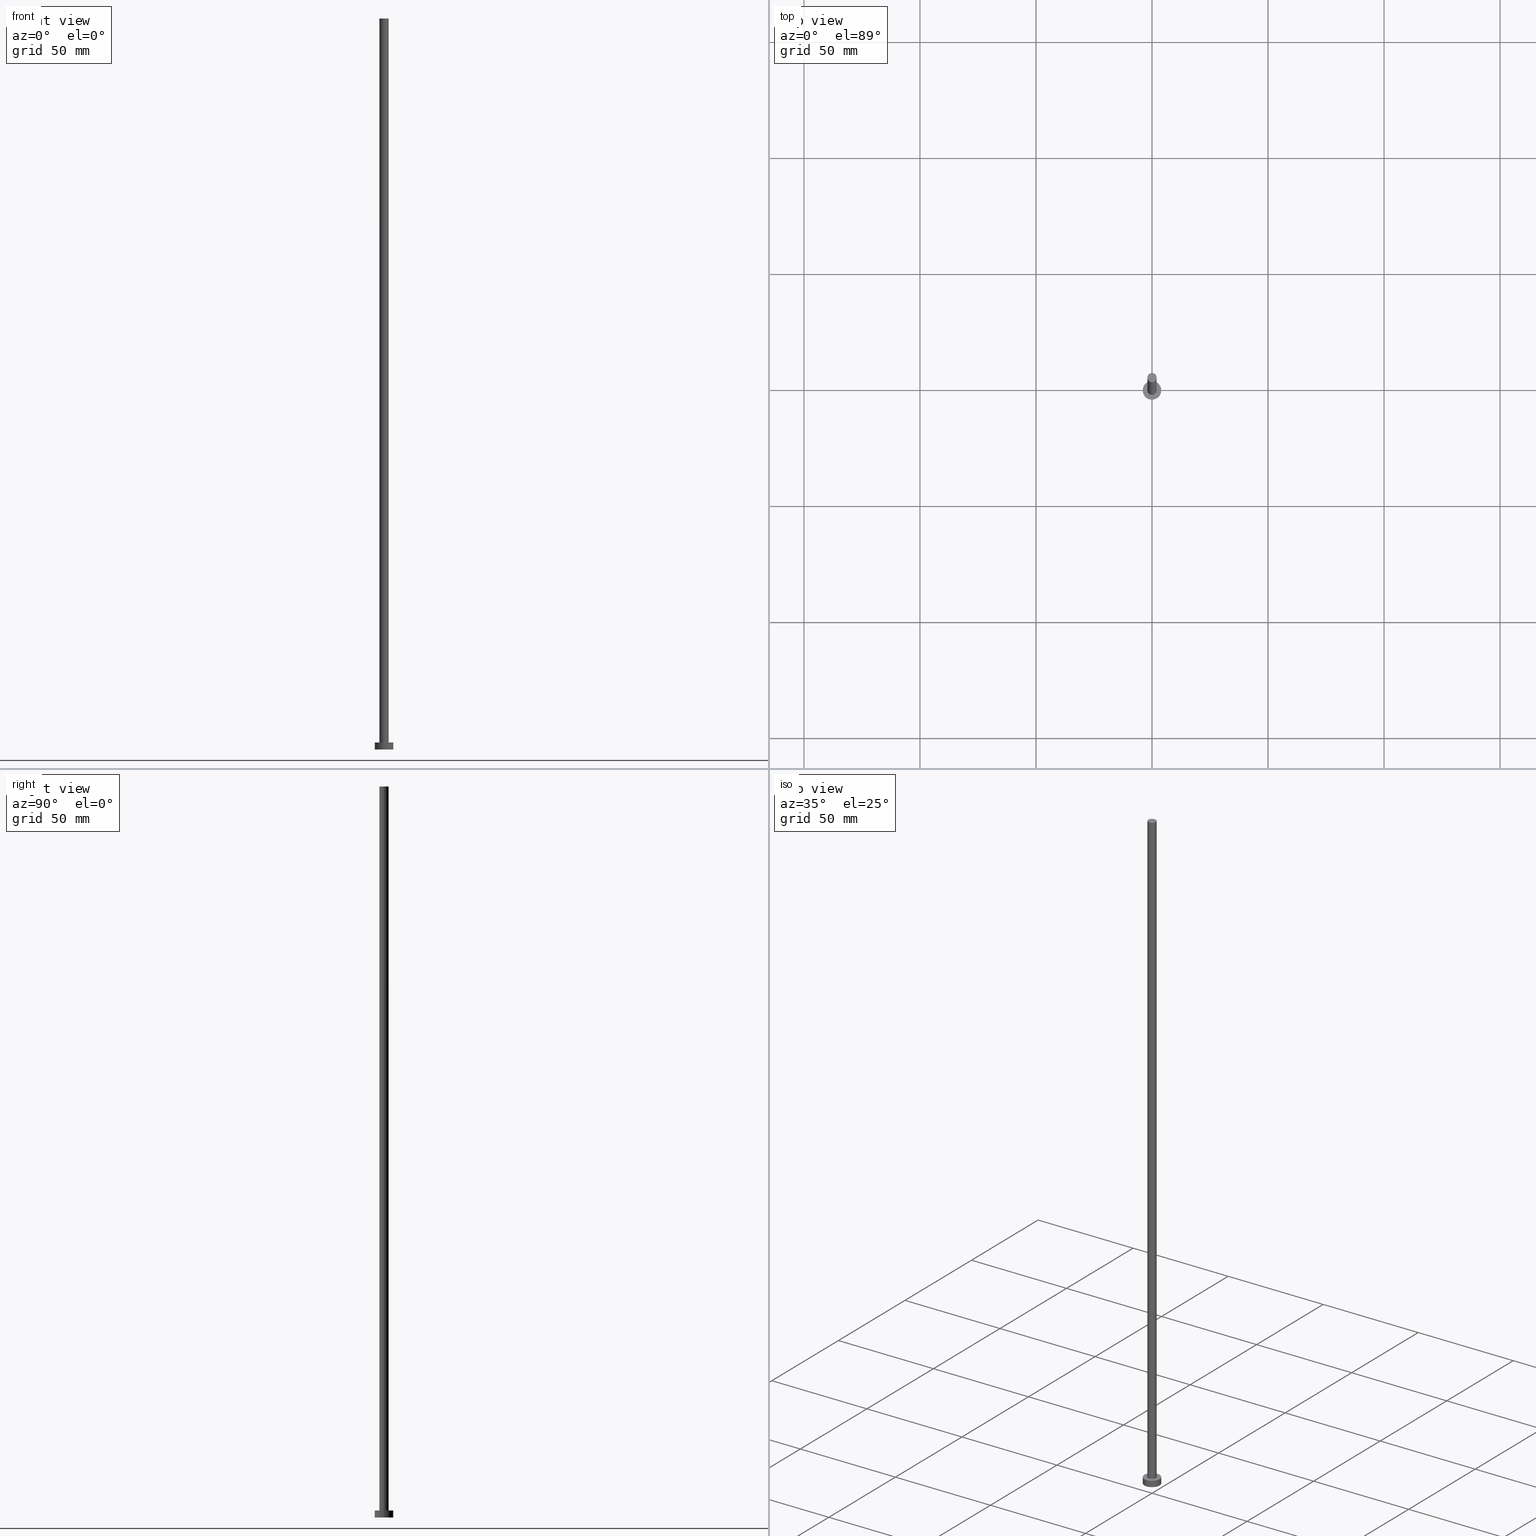
[diagram: canonical four-view strip — front | top / right | iso, engineering-drawing reading convention]
A machine part, canonical four-view strip (front | top / right | iso — engineering-drawing reading convention). The complete STEP part file that produces these views, byte-faithful:
ISO-10303-21;
HEADER;
FILE_DESCRIPTION (( 'STEP AP203' ),
    '1' );
FILE_NAME ('df63.STEP',
    '2023-02-13T13:57:13',
    ( '' ),
    ( '' ),
    'SwSTEP 2.0',
    'SolidWorks 2019',
    '' );
FILE_SCHEMA (( 'CONFIG_CONTROL_DESIGN' ));
ENDSEC;

DATA;
#1 = PERSON_AND_ORGANIZATION ( #118, #177 ) ;
#2 = EDGE_CURVE ( 'NONE', #64, #242, #34, .T. ) ;
#3 = CARTESIAN_POINT ( 'NONE',  ( 0.000000000000000000, 0.000000000000000000, 3.000000000000000000 ) ) ;
#4 = ORIENTED_EDGE ( 'NONE', *, *, #207, .F. ) ;
#5 = DIRECTION ( 'NONE',  ( -1.000000000000000000, 0.000000000000000000, 0.000000000000000000 ) ) ;
#6 = CIRCLE ( 'NONE', #68, 4.000000000000000000 ) ;
#7 = APPROVAL_STATUS ( 'not_yet_approved' ) ;
#8 = ADVANCED_FACE ( 'NONE', ( #245 ), #239, .T. ) ;
#9 = EDGE_LOOP ( 'NONE', ( #79, #77 ) ) ;
#10 = VERTEX_POINT ( 'NONE', #134 ) ;
#11 = DIRECTION ( 'NONE',  ( 0.000000000000000000, 0.000000000000000000, 1.000000000000000000 ) ) ;
#12 = CC_DESIGN_PERSON_AND_ORGANIZATION_ASSIGNMENT ( #41, #98, ( #29 ) ) ;
#13 = UNCERTAINTY_MEASURE_WITH_UNIT (LENGTH_MEASURE( 1.000000000000000082E-05 ), #36, 'distance_accuracy_value', 'NONE');
#14 = SHAPE_DEFINITION_REPRESENTATION ( #16, #42 ) ;
#15 = CIRCLE ( 'NONE', #170, 2.000000000000000000 ) ;
#16 = PRODUCT_DEFINITION_SHAPE ( 'NONE', 'NONE',  #187 ) ;
#17 = DIRECTION ( 'NONE',  ( 1.000000000000000000, 0.000000000000000000, 0.000000000000000000 ) ) ;
#18 = DATE_AND_TIME ( #237, #197 ) ;
#19 = APPROVAL_PERSON_ORGANIZATION ( #1, #236, #116 ) ;
#20 = PERSON_AND_ORGANIZATION ( #118, #177 ) ;
#21 = ORIENTED_EDGE ( 'NONE', *, *, #33, .F. ) ;
#22 = DIRECTION ( 'NONE',  ( -1.000000000000000000, 0.000000000000000000, 0.000000000000000000 ) ) ;
#23 = VERTEX_POINT ( 'NONE', #76 ) ;
#24 = DIRECTION ( 'NONE',  ( -0.000000000000000000, -0.000000000000000000, -1.000000000000000000 ) ) ;
#25 = ORIENTED_EDGE ( 'NONE', *, *, #127, .F. ) ;
#26 = ORIENTED_EDGE ( 'NONE', *, *, #91, .F. ) ;
#27 = APPROVAL ( #61, 'NEUR�EN�' ) ;
#28 = ORIENTED_EDGE ( 'NONE', *, *, #2, .F. ) ;
#29 = PRODUCT_DEFINITION_FORMATION_WITH_SPECIFIED_SOURCE ( 'LIBOVOLN�', '', #58, .NOT_KNOWN. ) ;
#30 = DIRECTION ( 'NONE',  ( 0.000000000000000000, 0.000000000000000000, 1.000000000000000000 ) ) ;
#31 = DESIGN_CONTEXT ( 'detailed design', #59, 'design' ) ;
#32 = PLANE ( 'NONE',  #196 ) ;
#33 = EDGE_CURVE ( 'NONE', #23, #48, #139, .T. ) ;
#34 = CIRCLE ( 'NONE', #193, 4.000000000000000000 ) ;
#35 = AXIS2_PLACEMENT_3D ( 'NONE', #233, #253, #17 ) ;
#36 =( LENGTH_UNIT ( ) NAMED_UNIT ( * ) SI_UNIT ( .MILLI., .METRE. ) );
#37 = DIRECTION ( 'NONE',  ( 0.000000000000000000, 0.000000000000000000, 1.000000000000000000 ) ) ;
#38 = APPROVAL_STATUS ( 'not_yet_approved' ) ;
#39 = AXIS2_PLACEMENT_3D ( 'NONE', #158, #182, #229 ) ;
#40 = VERTEX_POINT ( 'NONE', #102 ) ;
#41 = PERSON_AND_ORGANIZATION ( #118, #177 ) ;
#42 = ADVANCED_BREP_SHAPE_REPRESENTATION ( 'df63', ( #100, #146 ), #97 ) ;
#43 = PLANE ( 'NONE',  #67 ) ;
#44 = ORIENTED_EDGE ( 'NONE', *, *, #127, .T. ) ;
#45 = DIRECTION ( 'NONE',  ( 0.000000000000000000, 0.000000000000000000, 1.000000000000000000 ) ) ;
#46 = ORIENTED_EDGE ( 'NONE', *, *, #2, .T. ) ;
#47 = CC_DESIGN_PERSON_AND_ORGANIZATION_ASSIGNMENT ( #20, #132, ( #58 ) ) ;
#48 = VERTEX_POINT ( 'NONE', #121 ) ;
#49 = ADVANCED_FACE ( 'NONE', ( #222 ), #129, .T. ) ;
#50 = FACE_BOUND ( 'NONE', #220, .T. ) ;
#51 = PERSON_AND_ORGANIZATION_ROLE ( 'classification_officer' ) ;
#52 = CC_DESIGN_PERSON_AND_ORGANIZATION_ASSIGNMENT ( #120, #51, ( #160 ) ) ;
#53 = DIRECTION ( 'NONE',  ( -0.000000000000000000, -0.000000000000000000, -1.000000000000000000 ) ) ;
#54 = DIRECTION ( 'NONE',  ( 0.000000000000000000, 0.000000000000000000, 1.000000000000000000 ) ) ;
#55 = CARTESIAN_POINT ( 'NONE',  ( 0.000000000000000000, 0.000000000000000000, 3.000000000000000000 ) ) ;
#56 = DIRECTION ( 'NONE',  ( 1.000000000000000000, 0.000000000000000000, 0.000000000000000000 ) ) ;
#57 = APPLICATION_CONTEXT ( 'configuration controlled 3d designs of mechanical parts and assemblies' ) ;
#58 = PRODUCT ( 'df63', 'df63', '', ( #212 ) ) ;
#59 = APPLICATION_CONTEXT ( 'configuration controlled 3d designs of mechanical parts and assemblies' ) ;
#60 = DIRECTION ( 'NONE',  ( 0.000000000000000000, 0.000000000000000000, 1.000000000000000000 ) ) ;
#61 = APPROVAL_STATUS ( 'not_yet_approved' ) ;
#62 = DIRECTION ( 'NONE',  ( -0.000000000000000000, -0.000000000000000000, -1.000000000000000000 ) ) ;
#63 = EDGE_LOOP ( 'NONE', ( #135, #21, #117, #195 ) ) ;
#64 = VERTEX_POINT ( 'NONE', #241 ) ;
#65 = ADVANCED_FACE ( 'NONE', ( #219 ), #43, .F. ) ;
#66 = LINE ( 'NONE', #140, #180 ) ;
#67 = AXIS2_PLACEMENT_3D ( 'NONE', #194, #110, #137 ) ;
#68 = AXIS2_PLACEMENT_3D ( 'NONE', #251, #254, #73 ) ;
#69 = LOCAL_TIME ( 14, 57, 13.00000000000000000, #78 ) ;
#70 = FACE_OUTER_BOUND ( 'NONE', #9, .T. ) ;
#71 = ADVANCED_FACE ( 'NONE', ( #185 ), #201, .T. ) ;
#72 = CC_DESIGN_APPROVAL ( #27, ( #29 ) ) ;
#73 = DIRECTION ( 'NONE',  ( 1.000000000000000000, 0.000000000000000000, 0.000000000000000000 ) ) ;
#74 = AXIS2_PLACEMENT_3D ( 'NONE', #216, #24, #5 ) ;
#75 = PERSON_AND_ORGANIZATION ( #118, #177 ) ;
#76 = CARTESIAN_POINT ( 'NONE',  ( -2.000000000000000000, 0.000000000000000000, 315.0000000000000000 ) ) ;
#77 = ORIENTED_EDGE ( 'NONE', *, *, #114, .T. ) ;
#78 = COORDINATED_UNIVERSAL_TIME_OFFSET ( 1, 0, .AHEAD. ) ;
#79 = ORIENTED_EDGE ( 'NONE', *, *, #33, .T. ) ;
#80 = DIRECTION ( 'NONE',  ( 1.000000000000000000, 0.000000000000000000, 0.000000000000000000 ) ) ;
#81 = ORIENTED_EDGE ( 'NONE', *, *, #173, .F. ) ;
#82 = CC_DESIGN_DATE_AND_TIME_ASSIGNMENT ( #18, #96, ( #160 ) ) ;
#83 = AXIS2_PLACEMENT_3D ( 'NONE', #3, #62, #22 ) ;
#84 = VECTOR ( 'NONE', #142, 1000.000000000000000 ) ;
#85 = ORIENTED_EDGE ( 'NONE', *, *, #114, .F. ) ;
#86 = LOCAL_TIME ( 14, 57, 13.00000000000000000, #89 ) ;
#87 = APPROVAL_DATE_TIME ( #240, #202 ) ;
#88 = CARTESIAN_POINT ( 'NONE',  ( 4.000000000000000000, 4.898587196589412829E-16, 3.000000000000000000 ) ) ;
#89 = COORDINATED_UNIVERSAL_TIME_OFFSET ( 1, 0, .AHEAD. ) ;
#90 = DIRECTION ( 'NONE',  ( -1.000000000000000000, 0.000000000000000000, 0.000000000000000000 ) ) ;
#91 = EDGE_CURVE ( 'NONE', #10, #223, #224, .T. ) ;
#92 = EDGE_CURVE ( 'NONE', #23, #155, #136, .T. ) ;
#93 = DIRECTION ( 'NONE',  ( 0.000000000000000000, 0.000000000000000000, 1.000000000000000000 ) ) ;
#94 = CC_DESIGN_DATE_AND_TIME_ASSIGNMENT ( #221, #104, ( #187 ) ) ;
#95 = CARTESIAN_POINT ( 'NONE',  ( -4.000000000000000000, 0.000000000000000000, 3.000000000000000000 ) ) ;
#96 = DATE_TIME_ROLE ( 'classification_date' ) ;
#97 =( GEOMETRIC_REPRESENTATION_CONTEXT ( 3 ) GLOBAL_UNCERTAINTY_ASSIGNED_CONTEXT ( ( #13 ) ) GLOBAL_UNIT_ASSIGNED_CONTEXT ( ( #36, #156, #238 ) ) REPRESENTATION_CONTEXT ( 'NONE', 'WORKASPACE' ) );
#98 = PERSON_AND_ORGANIZATION_ROLE ( 'creator' ) ;
#99 = EDGE_LOOP ( 'NONE', ( #26, #4 ) ) ;
#100 = MANIFOLD_SOLID_BREP ( 'P�idat vysunut�m3', #226 ) ;
#101 = ADVANCED_FACE ( 'NONE', ( #50, #108 ), #32, .T. ) ;
#102 = CARTESIAN_POINT ( 'NONE',  ( 2.000000000000000000, 2.449293598294706414E-16, 3.000000000000000000 ) ) ;
#103 = ORIENTED_EDGE ( 'NONE', *, *, #247, .F. ) ;
#104 = DATE_TIME_ROLE ( 'creation_date' ) ;
#105 = CC_DESIGN_SECURITY_CLASSIFICATION ( #160, ( #29 ) ) ;
#106 = APPLICATION_PROTOCOL_DEFINITION ( 'international standard', 'config_control_design', 1994, #59 ) ;
#107 = ORIENTED_EDGE ( 'NONE', *, *, #173, .T. ) ;
#108 = FACE_OUTER_BOUND ( 'NONE', #175, .T. ) ;
#109 = DIRECTION ( 'NONE',  ( 1.000000000000000000, 0.000000000000000000, 0.000000000000000000 ) ) ;
#110 = DIRECTION ( 'NONE',  ( 0.000000000000000000, 0.000000000000000000, 1.000000000000000000 ) ) ;
#111 = CARTESIAN_POINT ( 'NONE',  ( 0.000000000000000000, 0.000000000000000000, 3.000000000000000000 ) ) ;
#112 = LOCAL_TIME ( 14, 57, 13.00000000000000000, #149 ) ;
#113 = DIRECTION ( 'NONE',  ( -0.000000000000000000, -0.000000000000000000, -1.000000000000000000 ) ) ;
#114 = EDGE_CURVE ( 'NONE', #48, #23, #15, .T. ) ;
#115 = AXIS2_PLACEMENT_3D ( 'NONE', #232, #93, #56 ) ;
#116 = APPROVAL_ROLE ( '' ) ;
#117 = ORIENTED_EDGE ( 'NONE', *, *, #92, .T. ) ;
#118 = PERSON ( 'NEUR�EN�', 'NEUR�EN�', 'NEUR�EN�', ('NEUR�EN�'), ('NEUR�EN�'), ('NEUR�EN�') ) ;
#119 = ORIENTED_EDGE ( 'NONE', *, *, #165, .T. ) ;
#120 = PERSON_AND_ORGANIZATION ( #118, #177 ) ;
#121 = CARTESIAN_POINT ( 'NONE',  ( 2.000000000000000000, 2.449293598294706414E-16, 315.0000000000000000 ) ) ;
#122 = ORIENTED_EDGE ( 'NONE', *, *, #91, .T. ) ;
#123 = APPROVAL_DATE_TIME ( #227, #27 ) ;
#124 = DIRECTION ( 'NONE',  ( 1.000000000000000000, 0.000000000000000000, -0.000000000000000000 ) ) ;
#125 = CARTESIAN_POINT ( 'NONE',  ( 0.000000000000000000, 0.000000000000000000, 3.000000000000000000 ) ) ;
#126 = PERSON_AND_ORGANIZATION_ROLE ( 'creator' ) ;
#127 = EDGE_CURVE ( 'NONE', #64, #223, #183, .T. ) ;
#128 = DIRECTION ( 'NONE',  ( 1.000000000000000000, 0.000000000000000000, 0.000000000000000000 ) ) ;
#129 = CYLINDRICAL_SURFACE ( 'NONE', #74, 4.000000000000000000 ) ;
#130 = EDGE_LOOP ( 'NONE', ( #25, #81, #217, #122 ) ) ;
#131 = CALENDAR_DATE ( 2023, 13, 2 ) ;
#132 = PERSON_AND_ORGANIZATION_ROLE ( 'design_owner' ) ;
#133 = VECTOR ( 'NONE', #53, 1000.000000000000000 ) ;
#134 = CARTESIAN_POINT ( 'NONE',  ( -4.000000000000000000, 0.000000000000000000, 0.000000000000000000 ) ) ;
#135 = ORIENTED_EDGE ( 'NONE', *, *, #165, .F. ) ;
#136 = LINE ( 'NONE', #205, #133 ) ;
#137 = DIRECTION ( 'NONE',  ( 1.000000000000000000, 0.000000000000000000, -0.000000000000000000 ) ) ;
#138 = CARTESIAN_POINT ( 'NONE',  ( 0.000000000000000000, 0.000000000000000000, 0.000000000000000000 ) ) ;
#139 = CIRCLE ( 'NONE', #204, 2.000000000000000000 ) ;
#140 = CARTESIAN_POINT ( 'NONE',  ( -4.000000000000000000, 0.000000000000000000, 3.000000000000000000 ) ) ;
#141 = CIRCLE ( 'NONE', #35, 2.000000000000000000 ) ;
#142 = DIRECTION ( 'NONE',  ( -0.000000000000000000, -0.000000000000000000, -1.000000000000000000 ) ) ;
#143 = CARTESIAN_POINT ( 'NONE',  ( 0.000000000000000000, 0.000000000000000000, 315.0000000000000000 ) ) ;
#144 = VECTOR ( 'NONE', #113, 1000.000000000000000 ) ;
#145 = CARTESIAN_POINT ( 'NONE',  ( 4.000000000000000000, 4.898587196589412829E-16, 0.000000000000000000 ) ) ;
#146 = AXIS2_PLACEMENT_3D ( 'NONE', #138, #45, #128 ) ;
#147 = CC_DESIGN_PERSON_AND_ORGANIZATION_ASSIGNMENT ( #172, #243, ( #29 ) ) ;
#148 = SECURITY_CLASSIFICATION_LEVEL ( 'unclassified' ) ;
#149 = COORDINATED_UNIVERSAL_TIME_OFFSET ( 1, 0, .AHEAD. ) ;
#150 = CARTESIAN_POINT ( 'NONE',  ( 0.000000000000000000, 0.000000000000000000, 315.0000000000000000 ) ) ;
#151 = ORIENTED_EDGE ( 'NONE', *, *, #231, .F. ) ;
#152 = AXIS2_PLACEMENT_3D ( 'NONE', #188, #206, #90 ) ;
#153 = CALENDAR_DATE ( 2023, 13, 2 ) ;
#154 = EDGE_LOOP ( 'NONE', ( #28, #44, #191, #211 ) ) ;
#155 = VERTEX_POINT ( 'NONE', #249 ) ;
#156 =( NAMED_UNIT ( * ) PLANE_ANGLE_UNIT ( ) SI_UNIT ( $, .RADIAN. ) );
#157 = DIRECTION ( 'NONE',  ( 0.000000000000000000, 0.000000000000000000, 1.000000000000000000 ) ) ;
#158 = CARTESIAN_POINT ( 'NONE',  ( 0.000000000000000000, 0.000000000000000000, 315.0000000000000000 ) ) ;
#159 = PRODUCT_RELATED_PRODUCT_CATEGORY ( 'detail', '', ( #58 ) ) ;
#160 = SECURITY_CLASSIFICATION ( '', '', #148 ) ;
#161 = CALENDAR_DATE ( 2023, 13, 2 ) ;
#162 = DIRECTION ( 'NONE',  ( 1.000000000000000000, 0.000000000000000000, -0.000000000000000000 ) ) ;
#163 = APPROVAL_DATE_TIME ( #184, #236 ) ;
#164 = LOCAL_TIME ( 14, 57, 13.00000000000000000, #178 ) ;
#165 = EDGE_CURVE ( 'NONE', #48, #40, #230, .T. ) ;
#166 = DIRECTION ( 'NONE',  ( 0.000000000000000000, 0.000000000000000000, 1.000000000000000000 ) ) ;
#167 = EDGE_CURVE ( 'NONE', #242, #10, #66, .T. ) ;
#168 = DIRECTION ( 'NONE',  ( 1.000000000000000000, 0.000000000000000000, 0.000000000000000000 ) ) ;
#169 = ADVANCED_FACE ( 'NONE', ( #234 ), #235, .T. ) ;
#170 = AXIS2_PLACEMENT_3D ( 'NONE', #250, #30, #109 ) ;
#171 = APPROVAL_ROLE ( '' ) ;
#172 = PERSON_AND_ORGANIZATION ( #118, #177 ) ;
#173 = EDGE_CURVE ( 'NONE', #242, #64, #228, .T. ) ;
#174 = APPROVAL_ROLE ( '' ) ;
#175 = EDGE_LOOP ( 'NONE', ( #107, #46 ) ) ;
#176 = CIRCLE ( 'NONE', #208, 2.000000000000000000 ) ;
#177 = ORGANIZATION ( 'NEUR�EN�', 'NEUR�EN�', '' ) ;
#178 = COORDINATED_UNIVERSAL_TIME_OFFSET ( 1, 0, .AHEAD. ) ;
#179 = ORIENTED_EDGE ( 'NONE', *, *, #92, .F. ) ;
#180 = VECTOR ( 'NONE', #210, 1000.000000000000000 ) ;
#181 = CC_DESIGN_APPROVAL ( #236, ( #160 ) ) ;
#182 = DIRECTION ( 'NONE',  ( -0.000000000000000000, -0.000000000000000000, -1.000000000000000000 ) ) ;
#183 = LINE ( 'NONE', #88, #84 ) ;
#184 = DATE_AND_TIME ( #161, #86 ) ;
#185 = FACE_OUTER_BOUND ( 'NONE', #246, .T. ) ;
#186 = CARTESIAN_POINT ( 'NONE',  ( 2.000000000000000000, 2.449293598294706414E-16, 315.0000000000000000 ) ) ;
#187 = PRODUCT_DEFINITION ( 'NEZN�M�', '', #29, #31 ) ;
#188 = CARTESIAN_POINT ( 'NONE',  ( 0.000000000000000000, 0.000000000000000000, 315.0000000000000000 ) ) ;
#189 = PLANE ( 'NONE',  #213 ) ;
#190 = COORDINATED_UNIVERSAL_TIME_OFFSET ( 1, 0, .AHEAD. ) ;
#191 = ORIENTED_EDGE ( 'NONE', *, *, #207, .T. ) ;
#192 = CC_DESIGN_PERSON_AND_ORGANIZATION_ASSIGNMENT ( #75, #126, ( #187 ) ) ;
#193 = AXIS2_PLACEMENT_3D ( 'NONE', #125, #37, #244 ) ;
#194 = CARTESIAN_POINT ( 'NONE',  ( 0.000000000000000000, 0.000000000000000000, 0.000000000000000000 ) ) ;
#195 = ORIENTED_EDGE ( 'NONE', *, *, #231, .T. ) ;
#196 = AXIS2_PLACEMENT_3D ( 'NONE', #111, #11, #162 ) ;
#197 = LOCAL_TIME ( 14, 57, 13.00000000000000000, #190 ) ;
#198 = APPLICATION_PROTOCOL_DEFINITION ( 'international standard', 'config_control_design', 1994, #57 ) ;
#199 = ADVANCED_FACE ( 'NONE', ( #70 ), #189, .T. ) ;
#200 = ORIENTED_EDGE ( 'NONE', *, *, #247, .T. ) ;
#201 = CYLINDRICAL_SURFACE ( 'NONE', #39, 2.000000000000000000 ) ;
#202 = APPROVAL ( #7, 'NEUR�EN�' ) ;
#203 = DIRECTION ( 'NONE',  ( 1.000000000000000000, 0.000000000000000000, 0.000000000000000000 ) ) ;
#204 = AXIS2_PLACEMENT_3D ( 'NONE', #150, #60, #80 ) ;
#205 = CARTESIAN_POINT ( 'NONE',  ( -2.000000000000000000, 0.000000000000000000, 315.0000000000000000 ) ) ;
#206 = DIRECTION ( 'NONE',  ( -0.000000000000000000, -0.000000000000000000, -1.000000000000000000 ) ) ;
#207 = EDGE_CURVE ( 'NONE', #223, #10, #6, .T. ) ;
#208 = AXIS2_PLACEMENT_3D ( 'NONE', #55, #166, #168 ) ;
#209 = APPROVAL_PERSON_ORGANIZATION ( #248, #27, #171 ) ;
#210 = DIRECTION ( 'NONE',  ( -0.000000000000000000, -0.000000000000000000, -1.000000000000000000 ) ) ;
#211 = ORIENTED_EDGE ( 'NONE', *, *, #167, .F. ) ;
#212 = MECHANICAL_CONTEXT ( 'NONE', #57, 'mechanical' ) ;
#213 = AXIS2_PLACEMENT_3D ( 'NONE', #143, #54, #124 ) ;
#214 = CC_DESIGN_APPROVAL ( #202, ( #187 ) ) ;
#215 = PERSON_AND_ORGANIZATION ( #118, #177 ) ;
#216 = CARTESIAN_POINT ( 'NONE',  ( 0.000000000000000000, 0.000000000000000000, 3.000000000000000000 ) ) ;
#217 = ORIENTED_EDGE ( 'NONE', *, *, #167, .T. ) ;
#218 = CALENDAR_DATE ( 2023, 13, 2 ) ;
#219 = FACE_OUTER_BOUND ( 'NONE', #99, .T. ) ;
#220 = EDGE_LOOP ( 'NONE', ( #151, #103 ) ) ;
#221 = DATE_AND_TIME ( #153, #112 ) ;
#222 = FACE_OUTER_BOUND ( 'NONE', #130, .T. ) ;
#223 = VERTEX_POINT ( 'NONE', #145 ) ;
#224 = CIRCLE ( 'NONE', #255, 4.000000000000000000 ) ;
#225 = CARTESIAN_POINT ( 'NONE',  ( 0.000000000000000000, 0.000000000000000000, 0.000000000000000000 ) ) ;
#226 = CLOSED_SHELL ( 'NONE', ( #71, #8, #49, #101, #65, #169, #199 ) ) ;
#227 = DATE_AND_TIME ( #131, #164 ) ;
#228 = CIRCLE ( 'NONE', #115, 4.000000000000000000 ) ;
#229 = DIRECTION ( 'NONE',  ( -1.000000000000000000, 0.000000000000000000, 0.000000000000000000 ) ) ;
#230 = LINE ( 'NONE', #186, #144 ) ;
#231 = EDGE_CURVE ( 'NONE', #155, #40, #141, .T. ) ;
#232 = CARTESIAN_POINT ( 'NONE',  ( 0.000000000000000000, 0.000000000000000000, 3.000000000000000000 ) ) ;
#233 = CARTESIAN_POINT ( 'NONE',  ( 0.000000000000000000, 0.000000000000000000, 3.000000000000000000 ) ) ;
#234 = FACE_OUTER_BOUND ( 'NONE', #63, .T. ) ;
#235 = CYLINDRICAL_SURFACE ( 'NONE', #152, 2.000000000000000000 ) ;
#236 = APPROVAL ( #38, 'NEUR�EN�' ) ;
#237 = CALENDAR_DATE ( 2023, 13, 2 ) ;
#238 =( NAMED_UNIT ( * ) SI_UNIT ( $, .STERADIAN. ) SOLID_ANGLE_UNIT ( ) );
#239 = CYLINDRICAL_SURFACE ( 'NONE', #83, 4.000000000000000000 ) ;
#240 = DATE_AND_TIME ( #218, #69 ) ;
#241 = CARTESIAN_POINT ( 'NONE',  ( 4.000000000000000000, 4.898587196589412829E-16, 3.000000000000000000 ) ) ;
#242 = VERTEX_POINT ( 'NONE', #95 ) ;
#243 = PERSON_AND_ORGANIZATION_ROLE ( 'design_supplier' ) ;
#244 = DIRECTION ( 'NONE',  ( 1.000000000000000000, 0.000000000000000000, 0.000000000000000000 ) ) ;
#245 = FACE_OUTER_BOUND ( 'NONE', #154, .T. ) ;
#246 = EDGE_LOOP ( 'NONE', ( #85, #119, #200, #179 ) ) ;
#247 = EDGE_CURVE ( 'NONE', #40, #155, #176, .T. ) ;
#248 = PERSON_AND_ORGANIZATION ( #118, #177 ) ;
#249 = CARTESIAN_POINT ( 'NONE',  ( -2.000000000000000000, 0.000000000000000000, 3.000000000000000000 ) ) ;
#250 = CARTESIAN_POINT ( 'NONE',  ( 0.000000000000000000, 0.000000000000000000, 315.0000000000000000 ) ) ;
#251 = CARTESIAN_POINT ( 'NONE',  ( 0.000000000000000000, 0.000000000000000000, 0.000000000000000000 ) ) ;
#252 = APPROVAL_PERSON_ORGANIZATION ( #215, #202, #174 ) ;
#253 = DIRECTION ( 'NONE',  ( 0.000000000000000000, 0.000000000000000000, 1.000000000000000000 ) ) ;
#254 = DIRECTION ( 'NONE',  ( 0.000000000000000000, 0.000000000000000000, 1.000000000000000000 ) ) ;
#255 = AXIS2_PLACEMENT_3D ( 'NONE', #225, #157, #203 ) ;
ENDSEC;
END-ISO-10303-21;
